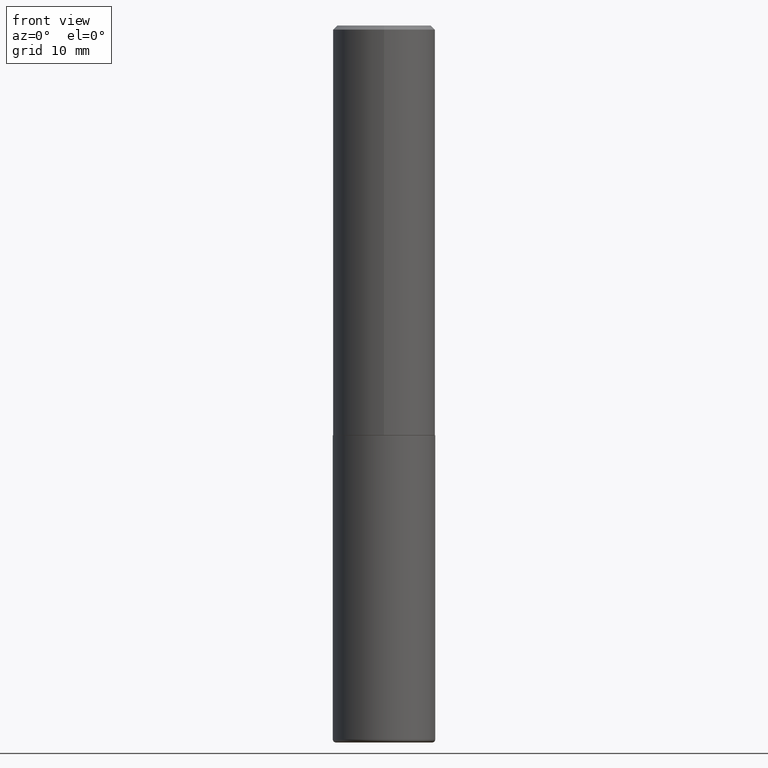
[diagram: clean part render]
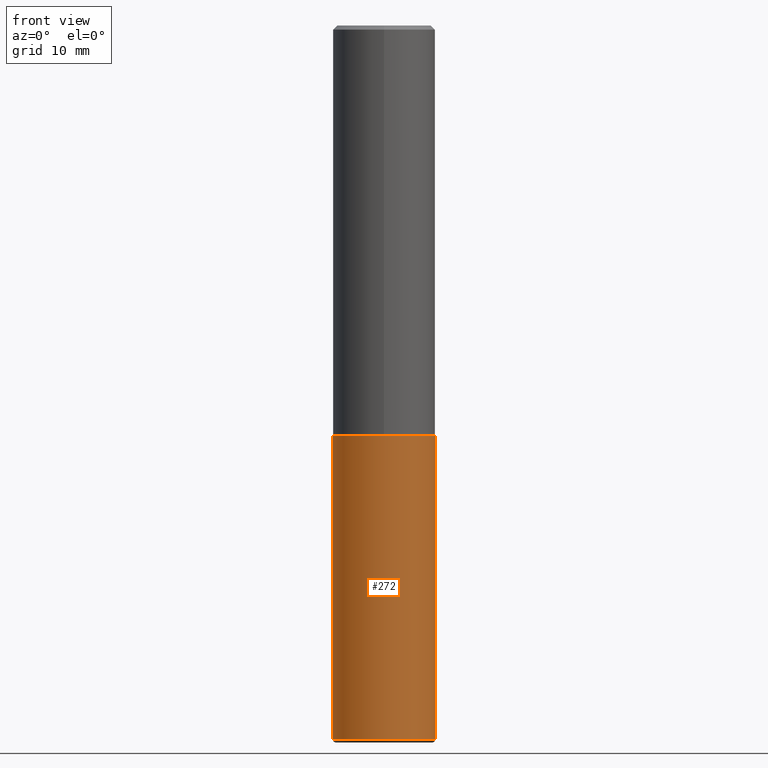
[diagram: same view with one face highlighted and labeled with its STEP entity id]
A machine part, front view. The second image highlights one B-rep face of the part: STEP entity #272.
In plain terms, the highlighted cylindrical surface (partial cylindrical patch) has radius 6.35 mm, axis along (-0, 0, 1).
Its self-contained STEP definition (entity closure, byte-faithful):
#18 = CIRCLE ( 'NONE', #78, 0.2500000000000000000 ) ;
#20 = CARTESIAN_POINT ( 'NONE',  ( 0.2499999999999999167, -1.391355313528992618E-14, -3.484999999999999432 ) ) ;
#28 = EDGE_CURVE ( 'NONE', #30, #246, #91, .T. ) ;
#30 = VERTEX_POINT ( 'NONE', #344 ) ;
#54 = ORIENTED_EDGE ( 'NONE', *, *, #28, .F. ) ;
#67 = LINE ( 'NONE', #230, #274 ) ;
#73 = EDGE_CURVE ( 'NONE', #246, #178, #116, .T. ) ;
#76 = CARTESIAN_POINT ( 'NONE',  ( 0.000000000000000000, 0.000000000000000000, 0.000000000000000000 ) ) ;
#78 = AXIS2_PLACEMENT_3D ( 'NONE', #296, #337, #400 ) ;
#91 = LINE ( 'NONE', #414, #298 ) ;
#106 = DIRECTION ( 'NONE',  ( -2.445468806185136597E-29, 3.491481338843145583E-15, 1.000000000000000000 ) ) ;
#116 = CIRCLE ( 'NONE', #238, 0.2500000000000000000 ) ;
#164 = CARTESIAN_POINT ( 'NONE',  ( 4.890937612370272633E-29, -6.982962677686290376E-15, -1.999999999999999778 ) ) ;
#178 = VERTEX_POINT ( 'NONE', #327 ) ;
#179 = EDGE_CURVE ( 'NONE', #332, #178, #67, .T. ) ;
#192 = DIRECTION ( 'NONE',  ( -2.445468806185136877E-29, 3.491481338843145188E-15, 1.000000000000000000 ) ) ;
#194 = DIRECTION ( 'NONE',  ( 1.000000000000000000, -6.982962677686266711E-15, 0.000000000000000000 ) ) ;
#230 = CARTESIAN_POINT ( 'NONE',  ( 0.2500000000000000000, -1.745740669421566678E-15, 1.219044193948983948E-29 ) ) ;
#238 = AXIS2_PLACEMENT_3D ( 'NONE', #164, #322, #194 ) ;
#246 = VERTEX_POINT ( 'NONE', #304 ) ;
#272 = ADVANCED_FACE ( 'NONE', ( #401 ), #408, .T. ) ;
#274 = VECTOR ( 'NONE', #192, 39.37007874015748143 ) ;
#296 = CARTESIAN_POINT ( 'NONE',  ( 8.522458789555200771E-29, -1.216781246586836108E-14, -3.484999999999999432 ) ) ;
#298 = VECTOR ( 'NONE', #348, 39.37007874015748143 ) ;
#300 = DIRECTION ( 'NONE',  ( 1.000000000000000000, -6.982962677686266711E-15, 4.876176775795935793E-29 ) ) ;
#304 = CARTESIAN_POINT ( 'NONE',  ( -0.2500000000000000000, -7.799030732377074474E-15, -1.999999999999999778 ) ) ;
#310 = AXIS2_PLACEMENT_3D ( 'NONE', #76, #106, #300 ) ;
#316 = ORIENTED_EDGE ( 'NONE', *, *, #380, .T. ) ;
#322 = DIRECTION ( 'NONE',  ( -2.445468806185136597E-29, 3.491481338843145583E-15, 1.000000000000000000 ) ) ;
#327 = CARTESIAN_POINT ( 'NONE',  ( 0.2500000000000000000, -8.728703347107857054E-15, -1.999999999999999778 ) ) ;
#332 = VERTEX_POINT ( 'NONE', #20 ) ;
#337 = DIRECTION ( 'NONE',  ( -2.445468806185136597E-29, 3.491481338843145583E-15, 1.000000000000000000 ) ) ;
#344 = CARTESIAN_POINT ( 'NONE',  ( -0.2499999999999999167, -1.039145562646811219E-14, -3.484999999999999432 ) ) ;
#348 = DIRECTION ( 'NONE',  ( -2.445468806185136877E-29, 3.491481338843145188E-15, 1.000000000000000000 ) ) ;
#380 = EDGE_CURVE ( 'NONE', #30, #332, #18, .T. ) ;
#399 = ORIENTED_EDGE ( 'NONE', *, *, #179, .T. ) ;
#400 = DIRECTION ( 'NONE',  ( 1.000000000000000000, -6.982962677686262766E-15, 0.000000000000000000 ) ) ;
#401 = FACE_OUTER_BOUND ( 'NONE', #411, .T. ) ;
#405 = ORIENTED_EDGE ( 'NONE', *, *, #73, .F. ) ;
#408 = CYLINDRICAL_SURFACE ( 'NONE', #310, 0.2500000000000000000 ) ;
#411 = EDGE_LOOP ( 'NONE', ( #54, #316, #399, #405 ) ) ;
#414 = CARTESIAN_POINT ( 'NONE',  ( -0.2500000000000000000, 1.776356839400250465E-15, -1.229733772563726445E-29 ) ) ;